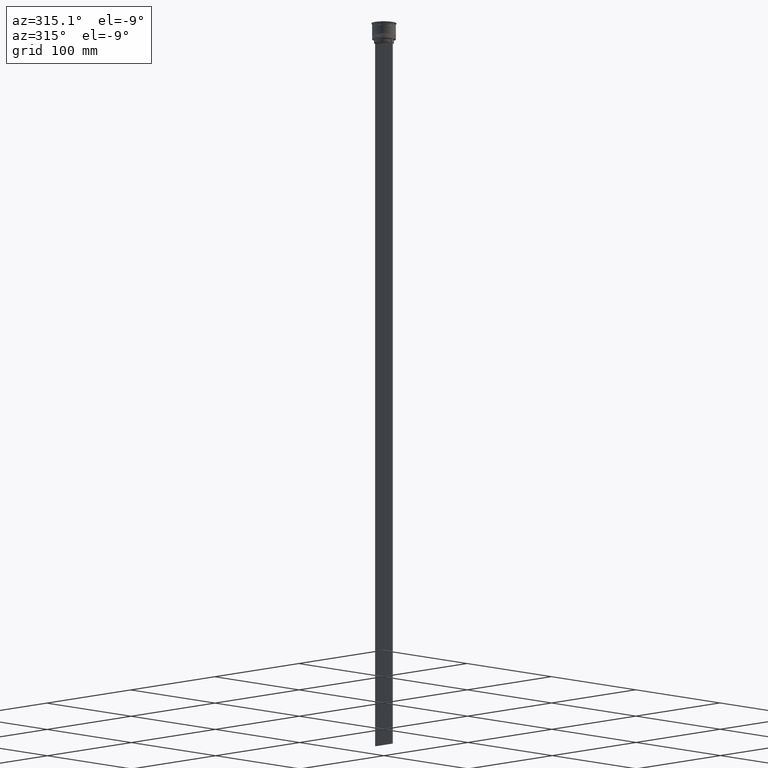
[diagram: clean part render]
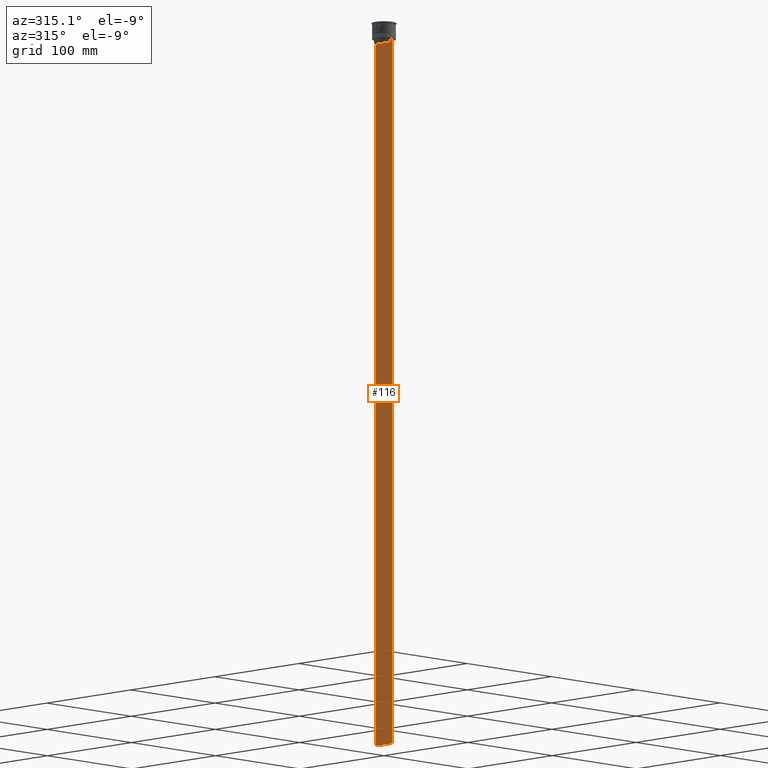
[diagram: same view with one face highlighted and labeled with its STEP entity id]
A machine part, auxiliary view. The second image highlights one B-rep face of the part: STEP entity #116.
In plain terms, the highlighted planar face has unit normal (-1, 0, 0).
Its self-contained STEP definition (entity closure, byte-faithful):
#18 = DIRECTION ( 'NONE',  ( 0.000000000000000000, 0.000000000000000000, -1.000000000000000000 ) ) ;
#19 = ORIENTED_EDGE ( 'NONE', *, *, #46, .F. ) ;
#21 = VECTOR ( 'NONE', #47, 1000.000000000000000 ) ;
#39 = EDGE_LOOP ( 'NONE', ( #387, #2185, #2031, #1726, #1035, #1690, #1568, #504, #19, #1911, #300, #1904 ) ) ;
#46 = EDGE_CURVE ( 'NONE', #182, #708, #2596, .T. ) ;
#47 = DIRECTION ( 'NONE',  ( 0.000000000000000000, -1.000000000000000000, 0.000000000000000000 ) ) ;
#74 = VECTOR ( 'NONE', #418, 1000.000000000000000 ) ;
#109 = LINE ( 'NONE', #933, #2411 ) ;
#116 = ADVANCED_FACE ( 'NONE', ( #1211 ), #790, .T. ) ;
#165 = LINE ( 'NONE', #1608, #2014 ) ;
#177 = B_SPLINE_CURVE_WITH_KNOTS ( 'NONE', 3,
 ( #188, #605, #2474, #1012 ),
 .UNSPECIFIED., .F., .F.,
 ( 4, 4 ),
 ( 0.01511546479386908018, 0.01582316445439079997 ),
 .UNSPECIFIED. ) ;
#182 = VERTEX_POINT ( 'NONE', #1820 ) ;
#188 = CARTESIAN_POINT ( 'NONE',  ( -0.5000000000000000000, 8.885943956609230199, -14.00000000000000178 ) ) ;
#201 = VERTEX_POINT ( 'NONE', #1164 ) ;
#271 = VERTEX_POINT ( 'NONE', #937 ) ;
#300 = ORIENTED_EDGE ( 'NONE', *, *, #956, .F. ) ;
#316 = LINE ( 'NONE', #1920, #2146 ) ;
#325 = CARTESIAN_POINT ( 'NONE',  ( -0.5000000000000000000, -8.552060194457769882, -14.33334167772667200 ) ) ;
#357 = LINE ( 'NONE', #1638, #2275 ) ;
#387 = ORIENTED_EDGE ( 'NONE', *, *, #454, .F. ) ;
#397 = VERTEX_POINT ( 'NONE', #1748 ) ;
#418 = DIRECTION ( 'NONE',  ( 0.000000000000000000, 0.000000000000000000, -1.000000000000000000 ) ) ;
#430 = CARTESIAN_POINT ( 'NONE',  ( -0.5000000000000000000, 9.999999999999998224, -614.0000000000000000 ) ) ;
#441 = CARTESIAN_POINT ( 'NONE',  ( -0.5000000000000000000, 9.999999999999998224, 6.024984394500783047 ) ) ;
#454 = EDGE_CURVE ( 'NONE', #271, #397, #177, .T. ) ;
#476 = CARTESIAN_POINT ( 'NONE',  ( -0.5000000000000000000, -8.385105843100616241, -14.50000000000000000 ) ) ;
#504 = ORIENTED_EDGE ( 'NONE', *, *, #1086, .F. ) ;
#590 = DIRECTION ( 'NONE',  ( 0.000000000000000000, 0.000000000000000000, 1.000000000000000000 ) ) ;
#605 = CARTESIAN_POINT ( 'NONE',  ( -0.5000000000000000000, 8.719005771582351016, -14.16667453442324742 ) ) ;
#708 = VERTEX_POINT ( 'NONE', #1558 ) ;
#753 = LINE ( 'NONE', #2620, #1578 ) ;
#759 = VECTOR ( 'NONE', #1369, 1000.000000000000000 ) ;
#790 = PLANE ( 'NONE',  #973 ) ;
#810 = EDGE_CURVE ( 'NONE', #2418, #1592, #109, .T. ) ;
#867 = EDGE_CURVE ( 'NONE', #2432, #182, #1833, .T. ) ;
#873 = DIRECTION ( 'NONE',  ( 0.000000000000000000, 1.000000000000000000, 0.000000000000000000 ) ) ;
#881 = CARTESIAN_POINT ( 'NONE',  ( -0.5000000000000000000, -10.00000000000000178, -14.00000000000000178 ) ) ;
#933 = CARTESIAN_POINT ( 'NONE',  ( -0.5000000000000000000, -10.00000000000000178, -14.00000000000000178 ) ) ;
#937 = CARTESIAN_POINT ( 'NONE',  ( -0.5000000000000000000, 8.885943956609230199, -14.00000000000000178 ) ) ;
#942 = CARTESIAN_POINT ( 'NONE',  ( -0.5000000000000000000, -8.385105843100616241, -17.00000000000000000 ) ) ;
#956 = EDGE_CURVE ( 'NONE', #201, #2432, #165, .T. ) ;
#973 = AXIS2_PLACEMENT_3D ( 'NONE', #2394, #1376, #590 ) ;
#1012 = CARTESIAN_POINT ( 'NONE',  ( -0.5000000000000000000, 8.385105843100616241, -14.50000000000000000 ) ) ;
#1013 = CARTESIAN_POINT ( 'NONE',  ( -0.5000000000000000000, -10.00000000000000178, -14.00000000000000178 ) ) ;
#1035 = ORIENTED_EDGE ( 'NONE', *, *, #2021, .F. ) ;
#1086 = EDGE_CURVE ( 'NONE', #708, #2555, #1902, .T. ) ;
#1148 = CARTESIAN_POINT ( 'NONE',  ( -0.5000000000000000000, -8.719005764482790966, -14.16667454151159689 ) ) ;
#1164 = CARTESIAN_POINT ( 'NONE',  ( -0.5000000000000000000, 8.385105843100616241, -17.00000000000000000 ) ) ;
#1182 = DIRECTION ( 'NONE',  ( 0.000000000000000000, -1.000000000000000000, 0.000000000000000000 ) ) ;
#1211 = FACE_OUTER_BOUND ( 'NONE', #39, .T. ) ;
#1328 = CARTESIAN_POINT ( 'NONE',  ( -0.5000000000000000000, 9.887365675446622149, -14.00000000000000178 ) ) ;
#1369 = DIRECTION ( 'NONE',  ( 0.000000000000000000, 0.000000000000000000, -1.000000000000000000 ) ) ;
#1376 = DIRECTION ( 'NONE',  ( -1.000000000000000000, 0.000000000000000000, 0.000000000000000000 ) ) ;
#1385 = EDGE_CURVE ( 'NONE', #2555, #2592, #753, .T. ) ;
#1437 = DIRECTION ( 'NONE',  ( -0.000000000000000000, -0.000000000000000000, 1.000000000000000000 ) ) ;
#1464 = EDGE_CURVE ( 'NONE', #2418, #1504, #2478, .T. ) ;
#1504 = VERTEX_POINT ( 'NONE', #430 ) ;
#1558 = CARTESIAN_POINT ( 'NONE',  ( -0.5000000000000000000, -8.885943956609230199, -14.00000000000000178 ) ) ;
#1568 = ORIENTED_EDGE ( 'NONE', *, *, #1385, .F. ) ;
#1578 = VECTOR ( 'NONE', #2042, 1000.000000000000000 ) ;
#1591 = CARTESIAN_POINT ( 'NONE',  ( -0.5000000000000000000, -10.00000000000000178, 6.024984394500783047 ) ) ;
#1592 = VERTEX_POINT ( 'NONE', #1328 ) ;
#1608 = CARTESIAN_POINT ( 'NONE',  ( -0.5000000000000000000, 8.400000000000003908, -17.00000000000000000 ) ) ;
#1638 = CARTESIAN_POINT ( 'NONE',  ( -0.5000000000000000000, -10.00000000000000178, -14.00000000000000178 ) ) ;
#1690 = ORIENTED_EDGE ( 'NONE', *, *, #1757, .F. ) ;
#1726 = ORIENTED_EDGE ( 'NONE', *, *, #1464, .T. ) ;
#1748 = CARTESIAN_POINT ( 'NONE',  ( -0.5000000000000000000, 8.385105843100616241, -14.50000000000000000 ) ) ;
#1757 = EDGE_CURVE ( 'NONE', #2592, #2463, #2427, .T. ) ;
#1820 = CARTESIAN_POINT ( 'NONE',  ( -0.5000000000000000000, -8.385105843100616241, -14.50000000000000000 ) ) ;
#1833 = LINE ( 'NONE', #2037, #2662 ) ;
#1867 = CARTESIAN_POINT ( 'NONE',  ( -0.5000000000000000000, 8.385105843100616241, 0.000000000000000000 ) ) ;
#1902 = LINE ( 'NONE', #881, #21 ) ;
#1904 = ORIENTED_EDGE ( 'NONE', *, *, #2562, .F. ) ;
#1911 = ORIENTED_EDGE ( 'NONE', *, *, #867, .F. ) ;
#1920 = CARTESIAN_POINT ( 'NONE',  ( -0.5000000000000000000, -10.00000000000000178, -614.0000000000000000 ) ) ;
#1973 = CARTESIAN_POINT ( 'NONE',  ( -0.5000000000000000000, 9.999999999999994671, -14.00000000000000178 ) ) ;
#1978 = CARTESIAN_POINT ( 'NONE',  ( -0.5000000000000000000, -8.885943956609230199, -14.00000000000000178 ) ) ;
#1981 = DIRECTION ( 'NONE',  ( 0.000000000000000000, -1.000000000000000000, 0.000000000000000000 ) ) ;
#2014 = VECTOR ( 'NONE', #2436, 1000.000000000000000 ) ;
#2021 = EDGE_CURVE ( 'NONE', #2463, #1504, #316, .T. ) ;
#2031 = ORIENTED_EDGE ( 'NONE', *, *, #810, .F. ) ;
#2037 = CARTESIAN_POINT ( 'NONE',  ( -0.5000000000000000000, -8.385105843100616241, 0.000000000000000000 ) ) ;
#2042 = DIRECTION ( 'NONE',  ( 0.000000000000000000, -1.000000000000000000, 0.000000000000000000 ) ) ;
#2057 = CARTESIAN_POINT ( 'NONE',  ( -0.5000000000000000000, -9.887365675446622149, -14.00000000000000178 ) ) ;
#2146 = VECTOR ( 'NONE', #873, 1000.000000000000000 ) ;
#2185 = ORIENTED_EDGE ( 'NONE', *, *, #2657, .F. ) ;
#2275 = VECTOR ( 'NONE', #1182, 1000.000000000000000 ) ;
#2286 = LINE ( 'NONE', #1867, #74 ) ;
#2366 = CARTESIAN_POINT ( 'NONE',  ( -0.5000000000000000000, -10.00000000000000178, -614.0000000000000000 ) ) ;
#2394 = CARTESIAN_POINT ( 'NONE',  ( -0.5000000000000000000, -10.00000000000000178, 6.024984394500783047 ) ) ;
#2411 = VECTOR ( 'NONE', #1981, 1000.000000000000000 ) ;
#2418 = VERTEX_POINT ( 'NONE', #1973 ) ;
#2427 = LINE ( 'NONE', #1591, #759 ) ;
#2432 = VERTEX_POINT ( 'NONE', #942 ) ;
#2436 = DIRECTION ( 'NONE',  ( 0.000000000000000000, -1.000000000000000000, 0.000000000000000000 ) ) ;
#2463 = VERTEX_POINT ( 'NONE', #2366 ) ;
#2474 = CARTESIAN_POINT ( 'NONE',  ( -0.5000000000000000000, 8.552060201981381837, -14.33334167021640226 ) ) ;
#2478 = LINE ( 'NONE', #441, #2529 ) ;
#2529 = VECTOR ( 'NONE', #18, 1000.000000000000000 ) ;
#2555 = VERTEX_POINT ( 'NONE', #2057 ) ;
#2562 = EDGE_CURVE ( 'NONE', #397, #201, #2286, .T. ) ;
#2592 = VERTEX_POINT ( 'NONE', #1013 ) ;
#2596 = B_SPLINE_CURVE_WITH_KNOTS ( 'NONE', 3,
 ( #476, #325, #1148, #1978 ),
 .UNSPECIFIED., .F., .F.,
 ( 4, 4 ),
 ( 0.03898465126933132324, 0.03969388910599660342 ),
 .UNSPECIFIED. ) ;
#2620 = CARTESIAN_POINT ( 'NONE',  ( -0.5000000000000000000, -10.00000000000000178, -14.00000000000000178 ) ) ;
#2657 = EDGE_CURVE ( 'NONE', #1592, #271, #357, .T. ) ;
#2662 = VECTOR ( 'NONE', #1437, 1000.000000000000000 ) ;